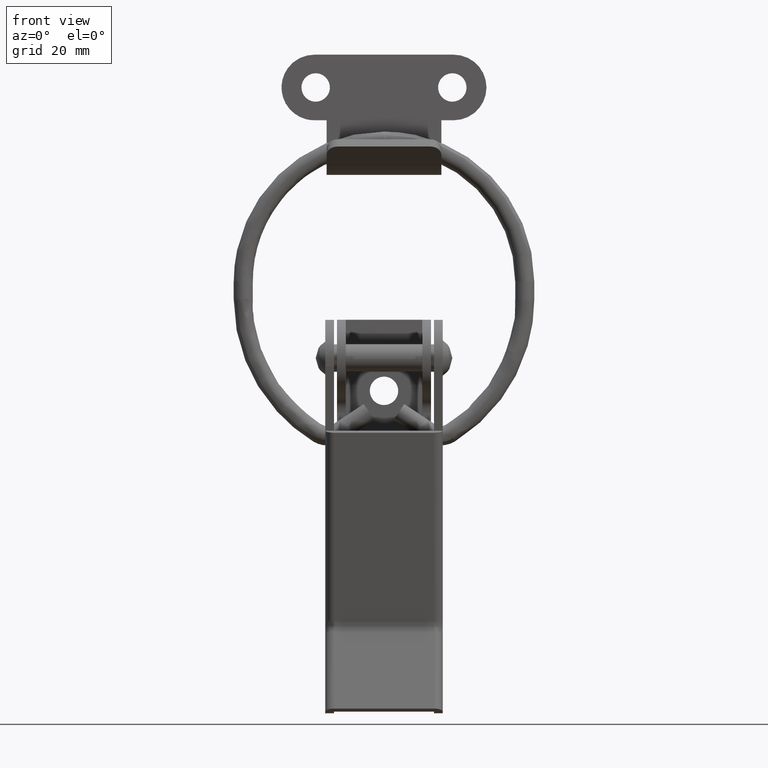
[diagram: clean part render]
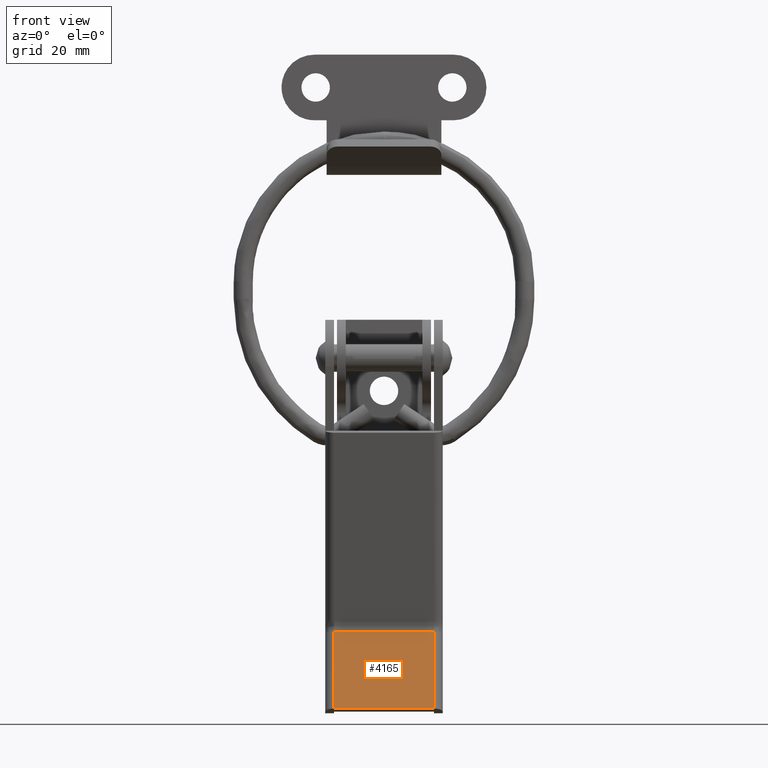
[diagram: same view with one face highlighted and labeled with its STEP entity id]
A machine part, front view. The second image highlights one B-rep face of the part: STEP entity #4165.
In plain terms, the highlighted face is a freeform B-spline surface patch.
Its self-contained STEP definition (entity closure, byte-faithful):
#3271=CARTESIAN_POINT('',(9.149996000000000,2.289569767177685,-49.974718634970003));
#3272=VERTEX_POINT('',#3271);
#3286=CARTESIAN_POINT('',(9.149996000000000,-2.900010000000000,-64.128119999999996));
#3287=VERTEX_POINT('',#3286);
#3288=CARTESIAN_POINT('',(9.149996000000000,-2.900010000000000,-64.128119999999996));
#3289=CARTESIAN_POINT('',(9.149996000000000,2.289569767177685,-49.974718634970003));
#3290=QUASI_UNIFORM_CURVE('',1,(#3288,#3289),.UNSPECIFIED.,.F.,.U.);
#3291=EDGE_CURVE('',#3287,#3272,#3290,.T.);
#3453=CARTESIAN_POINT('',(-9.150000000000000,2.289569767177685,-49.974718634970003));
#3454=VERTEX_POINT('',#3453);
#3582=CARTESIAN_POINT('',(-9.150000000000000,-2.900010000000000,-64.128119999999996));
#3583=VERTEX_POINT('',#3582);
#3599=CARTESIAN_POINT('',(-9.150000000000000,2.289569767177685,-49.974718634970003));
#3600=CARTESIAN_POINT('',(-9.150000000000000,-2.900010000000000,-64.128119999999996));
#3601=QUASI_UNIFORM_CURVE('',1,(#3599,#3600),.UNSPECIFIED.,.F.,.U.);
#3602=EDGE_CURVE('',#3454,#3583,#3601,.T.);
#3633=CARTESIAN_POINT('',(9.149996000000000,2.289569767177685,-49.974718634970003));
#3634=CARTESIAN_POINT('',(-9.150000000000000,2.289569767177685,-49.974718634970003));
#3635=QUASI_UNIFORM_CURVE('',1,(#3633,#3634),.UNSPECIFIED.,.F.,.U.);
#3636=EDGE_CURVE('',#3272,#3454,#3635,.T.);
#4121=CARTESIAN_POINT('',(9.149996000000000,-2.900010000000000,-64.128119999999996));
#4122=CARTESIAN_POINT('',(-9.150000000000000,-2.900010000000000,-64.128119999999996));
#4123=QUASI_UNIFORM_CURVE('',1,(#4121,#4122),.UNSPECIFIED.,.F.,.U.);
#4124=EDGE_CURVE('',#3287,#3583,#4123,.T.);
#4154=CARTESIAN_POINT('',(-10.064084421156521,-3.159229675635576,-64.835082851633331));
#4155=CARTESIAN_POINT('',(-10.064084421156521,2.548789025227103,-49.267756922208093));
#4156=CARTESIAN_POINT('',(10.064081239230090,-3.159229675635576,-64.835082851633331));
#4157=CARTESIAN_POINT('',(10.064081239230090,2.548789025227103,-49.267756922208093));
#4158=B_SPLINE_SURFACE_WITH_KNOTS('',1,1,((#4154,#4156),(#4155,#4157)),.UNSPECIFIED.,.F.,.F.,.U.,(2,2),(2,2),(0.0,16.580805592080068),(0.0,20.128165660386610),.UNSPECIFIED.);
#4159=ORIENTED_EDGE('',*,*,#3636,.T.);
#4160=ORIENTED_EDGE('',*,*,#3602,.T.);
#4161=ORIENTED_EDGE('',*,*,#4124,.F.);
#4162=ORIENTED_EDGE('',*,*,#3291,.T.);
#4163=EDGE_LOOP('',(#4159,#4160,#4161,#4162));
#4164=FACE_OUTER_BOUND('',#4163,.T.);
#4165=ADVANCED_FACE('',(#4164),#4158,.F.);